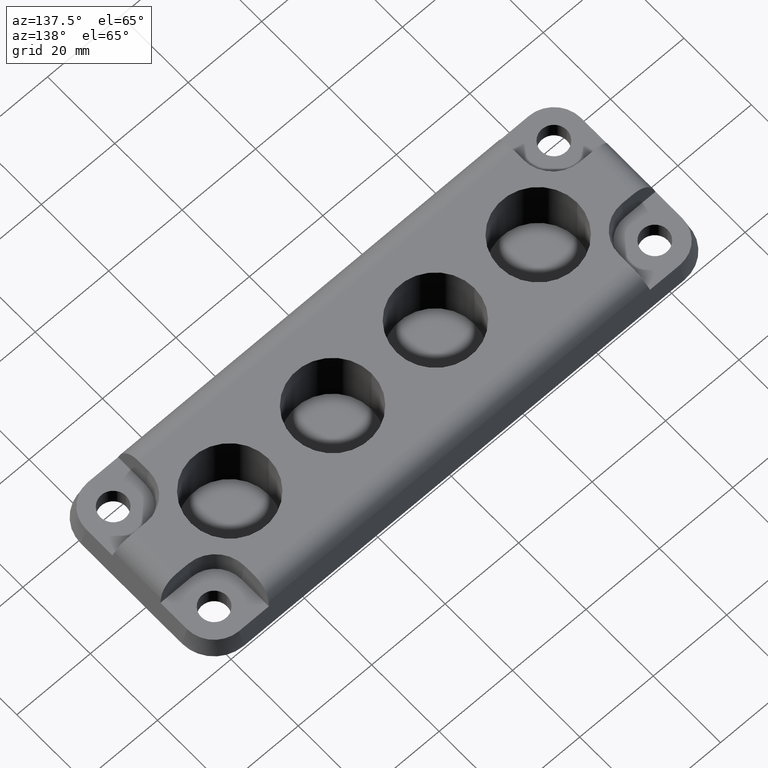
[diagram: clean part render]
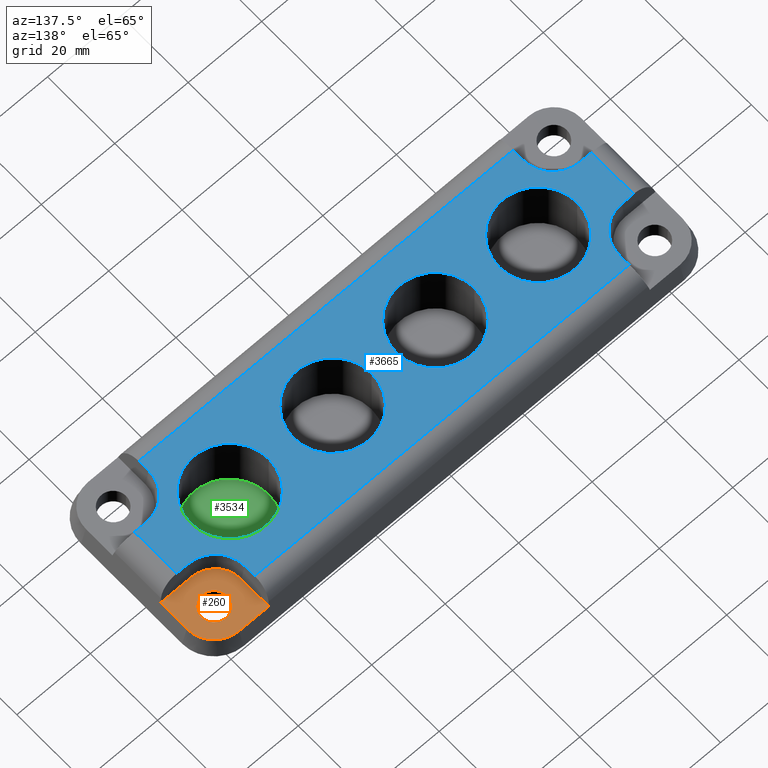
[diagram: same view with three faces highlighted in distinct colors, each labeled with its STEP entity id]
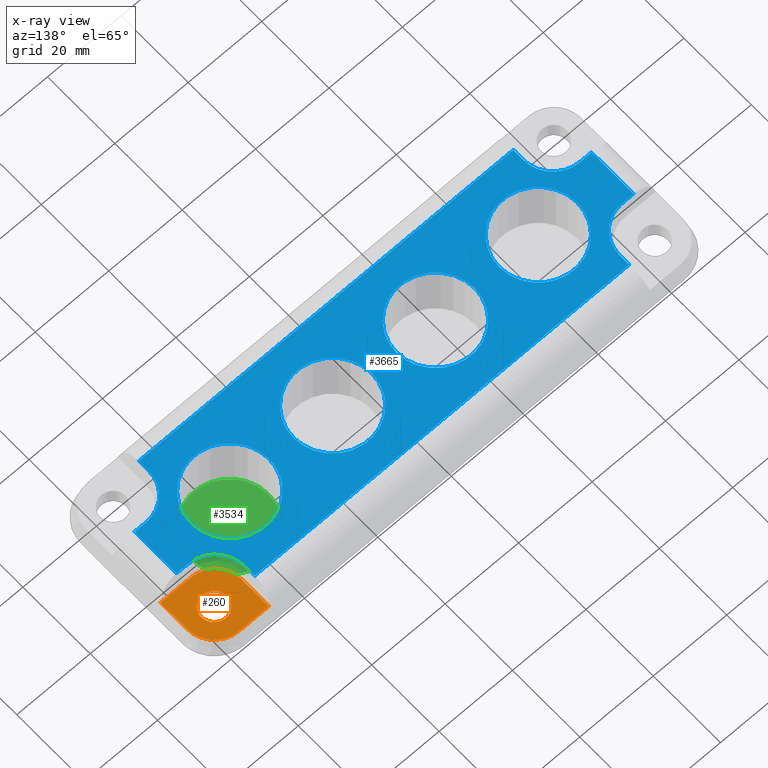
[diagram: x-ray of the same camera — body ghosted, the three highlighted faces saturated]
A machine part, auxiliary view with three faces highlighted in distinct colors.
The next image is the same camera in x-ray (body ghosted, the three faces saturated) — at least one of them is partly hidden behind the body in this view.
Their STEP definitions:

[orange] entity #260 — the highlighted planar face has unit normal (-0, 0, -1).
#56 = CARTESIAN_POINT ( 'NONE',  ( 67.41025403784439600, -14.99999999999997900, 5.000000000000000000 ) ) ;
#65 = CARTESIAN_POINT ( 'NONE',  ( 59.00000000000004300, 7.131634903542318300, 5.000000000000000000 ) ) ;
#120 = ORIENTED_EDGE ( 'NONE', *, *, #379, .F. ) ;
#200 = EDGE_CURVE ( 'NONE', #3311, #3814, #3155, .T. ) ;
#217 = VERTEX_POINT ( 'NONE', #3010 ) ;
#241 = LINE ( 'NONE', #1323, #4007 ) ;
#260 = ADVANCED_FACE ( 'NONE', ( #380, #432 ), #3676, .F. ) ;
#379 = EDGE_CURVE ( 'NONE', #1141, #1532, #2167, .T. ) ;
#380 = FACE_BOUND ( 'NONE', #2458, .T. ) ;
#432 = FACE_OUTER_BOUND ( 'NONE', #435, .T. ) ;
#435 = EDGE_LOOP ( 'NONE', ( #680, #120, #2648, #1283, #1404, #764 ) ) ;
#438 = CARTESIAN_POINT ( 'NONE',  ( 63.50000000000000000, 14.99999999999998800, 5.000000000000000000 ) ) ;
#618 = EDGE_CURVE ( 'NONE', #1532, #2119, #1313, .T. ) ;
#642 = VECTOR ( 'NONE', #2559, 1000.000000000000000 ) ;
#680 = ORIENTED_EDGE ( 'NONE', *, *, #618, .F. ) ;
#764 = ORIENTED_EDGE ( 'NONE', *, *, #3254, .F. ) ;
#817 = AXIS2_PLACEMENT_3D ( 'NONE', #2187, #2840, #2824 ) ;
#990 = LINE ( 'NONE', #3370, #1285 ) ;
#1113 = CARTESIAN_POINT ( 'NONE',  ( 59.00000000000000000, 14.24999999999999100, 5.000000000000000000 ) ) ;
#1141 = VERTEX_POINT ( 'NONE', #2594 ) ;
#1173 = VERTEX_POINT ( 'NONE', #438 ) ;
#1283 = ORIENTED_EDGE ( 'NONE', *, *, #200, .T. ) ;
#1285 = VECTOR ( 'NONE', #1784, 1000.000000000000000 ) ;
#1309 = CARTESIAN_POINT ( 'NONE',  ( 60.00000000000000700, 22.41025403784440700, 5.000000000000000000 ) ) ;
#1313 = CIRCLE ( 'NONE', #2043, 7.410254037844405900 ) ;
#1321 = EDGE_CURVE ( 'NONE', #3814, #217, #990, .T. ) ;
#1323 = CARTESIAN_POINT ( 'NONE',  ( 51.88163490354230600, 23.75000000000004600, 5.000000000000000000 ) ) ;
#1350 = DIRECTION ( 'NONE',  ( 1.460819769243627500E-015, -1.000000000000000000, 0.0000000000000000000 ) ) ;
#1395 = EDGE_CURVE ( 'NONE', #1173, #3625, #2497, .T. ) ;
#1401 = VECTOR ( 'NONE', #3446, 1000.000000000000000 ) ;
#1404 = ORIENTED_EDGE ( 'NONE', *, *, #1321, .T. ) ;
#1443 = CARTESIAN_POINT ( 'NONE',  ( 56.49999999999999300, 14.99999999999998800, 5.000000000000000000 ) ) ;
#1472 = DIRECTION ( 'NONE',  ( 0.0000000000000000000, 0.0000000000000000000, 1.000000000000000000 ) ) ;
#1517 = CIRCLE ( 'NONE', #817, 3.500000000000003100 ) ;
#1532 = VERTEX_POINT ( 'NONE', #1309 ) ;
#1784 = DIRECTION ( 'NONE',  ( 1.000000000000000000, 3.380486773698414600E-015, 0.0000000000000000000 ) ) ;
#1959 = ORIENTED_EDGE ( 'NONE', *, *, #1395, .F. ) ;
#1982 = EDGE_CURVE ( 'NONE', #3625, #1173, #1517, .T. ) ;
#2043 = AXIS2_PLACEMENT_3D ( 'NONE', #3608, #2953, #3583 ) ;
#2046 = DIRECTION ( 'NONE',  ( -1.000000000000000000, 0.0000000000000000000, 0.0000000000000000000 ) ) ;
#2119 = VERTEX_POINT ( 'NONE', #2884 ) ;
#2167 = LINE ( 'NONE', #3108, #1401 ) ;
#2187 = CARTESIAN_POINT ( 'NONE',  ( 60.00000000000000000, 14.99999999999998800, 5.000000000000000000 ) ) ;
#2265 = CARTESIAN_POINT ( 'NONE',  ( 51.88163490354232000, 14.25000000000004800, 5.000000000000000000 ) ) ;
#2340 = AXIS2_PLACEMENT_3D ( 'NONE', #3399, #3719, #3042 ) ;
#2458 = EDGE_LOOP ( 'NONE', ( #1959, #2988 ) ) ;
#2497 = CIRCLE ( 'NONE', #3443, 3.500000000000003100 ) ;
#2559 = DIRECTION ( 'NONE',  ( -0.0000000000000000000, -1.000000000000000000, -0.0000000000000000000 ) ) ;
#2594 = CARTESIAN_POINT ( 'NONE',  ( 51.88163490354231300, 22.41025403784440700, 4.999999999999999100 ) ) ;
#2648 = ORIENTED_EDGE ( 'NONE', *, *, #3725, .T. ) ;
#2674 = LINE ( 'NONE', #56, #642 ) ;
#2824 = DIRECTION ( 'NONE',  ( 1.000000000000000000, 0.0000000000000000000, 0.0000000000000000000 ) ) ;
#2840 = DIRECTION ( 'NONE',  ( 0.0000000000000000000, 0.0000000000000000000, 1.000000000000000000 ) ) ;
#2884 = CARTESIAN_POINT ( 'NONE',  ( 67.41025403784441000, 14.99999999999999300, 5.000000000000000000 ) ) ;
#2953 = DIRECTION ( 'NONE',  ( -0.0000000000000000000, -0.0000000000000000000, -1.000000000000000000 ) ) ;
#2988 = ORIENTED_EDGE ( 'NONE', *, *, #1982, .F. ) ;
#3010 = CARTESIAN_POINT ( 'NONE',  ( 67.41025403784439600, 7.131634903542348500, 5.000000000000000900 ) ) ;
#3042 = DIRECTION ( 'NONE',  ( -1.000000000000000000, 0.0000000000000000000, 0.0000000000000000000 ) ) ;
#3108 = CARTESIAN_POINT ( 'NONE',  ( -60.00000000000000700, 22.41025403784440700, 5.000000000000000000 ) ) ;
#3155 = CIRCLE ( 'NONE', #3624, 7.118365096457676300 ) ;
#3254 = EDGE_CURVE ( 'NONE', #2119, #217, #2674, .T. ) ;
#3311 = VERTEX_POINT ( 'NONE', #2265 ) ;
#3354 = CARTESIAN_POINT ( 'NONE',  ( 60.00000000000000000, 14.99999999999998800, 5.000000000000000000 ) ) ;
#3370 = CARTESIAN_POINT ( 'NONE',  ( 59.00000000000005000, 7.131634903542319200, 5.000000000000000000 ) ) ;
#3399 = CARTESIAN_POINT ( 'NONE',  ( -60.00000000000000700, 14.99999999999999300, 5.000000000000000000 ) ) ;
#3443 = AXIS2_PLACEMENT_3D ( 'NONE', #3354, #1472, #3679 ) ;
#3446 = DIRECTION ( 'NONE',  ( 1.000000000000000000, -0.0000000000000000000, -0.0000000000000000000 ) ) ;
#3583 = DIRECTION ( 'NONE',  ( -1.000000000000000000, 0.0000000000000000000, 0.0000000000000000000 ) ) ;
#3608 = CARTESIAN_POINT ( 'NONE',  ( 60.00000000000000700, 14.99999999999999300, 5.000000000000000000 ) ) ;
#3624 = AXIS2_PLACEMENT_3D ( 'NONE', #1113, #3942, #2046 ) ;
#3625 = VERTEX_POINT ( 'NONE', #1443 ) ;
#3676 = PLANE ( 'NONE',  #2340 ) ;
#3679 = DIRECTION ( 'NONE',  ( 1.000000000000000000, 0.0000000000000000000, 0.0000000000000000000 ) ) ;
#3719 = DIRECTION ( 'NONE',  ( -0.0000000000000000000, 0.0000000000000000000, -1.000000000000000000 ) ) ;
#3725 = EDGE_CURVE ( 'NONE', #1141, #3311, #241, .T. ) ;
#3814 = VERTEX_POINT ( 'NONE', #65 ) ;
#3942 = DIRECTION ( 'NONE',  ( 0.0000000000000000000, 0.0000000000000000000, 1.000000000000000000 ) ) ;
#4007 = VECTOR ( 'NONE', #1350, 1000.000000000000000 ) ;

[blue] entity #3665 — the highlighted planar face has unit normal (-0, 0, -1).
#35 = DIRECTION ( 'NONE',  ( -1.000000000000000000, 0.0000000000000000000, 0.0000000000000000000 ) ) ;
#52 = ORIENTED_EDGE ( 'NONE', *, *, #2007, .F. ) ;
#61 = CARTESIAN_POINT ( 'NONE',  ( 51.00000000000000000, 15.00000000000015500, 10.00000000000000000 ) ) ;
#74 = ORIENTED_EDGE ( 'NONE', *, *, #1440, .F. ) ;
#79 = ORIENTED_EDGE ( 'NONE', *, *, #3453, .F. ) ;
#82 = CARTESIAN_POINT ( 'NONE',  ( -24.60000000000000100, 1.298125607096194400E-015, 10.00000000000000000 ) ) ;
#96 = CIRCLE ( 'NONE', #610, 10.59999999999999800 ) ;
#103 = CARTESIAN_POINT ( 'NONE',  ( -42.00000000000000000, -1.328571821804666600E-031, 10.00000000000000000 ) ) ;
#115 = ORIENTED_EDGE ( 'NONE', *, *, #216, .T. ) ;
#130 = DIRECTION ( 'NONE',  ( 1.000000000000000000, 0.0000000000000000000, 0.0000000000000000000 ) ) ;
#172 = EDGE_CURVE ( 'NONE', #3811, #521, #2957, .T. ) ;
#193 = AXIS2_PLACEMENT_3D ( 'NONE', #2409, #1507, #315 ) ;
#215 = CIRCLE ( 'NONE', #3708, 8.000000000000000000 ) ;
#216 = EDGE_CURVE ( 'NONE', #406, #665, #2517, .T. ) ;
#221 = DIRECTION ( 'NONE',  ( 7.304098846218156400E-016, -1.000000000000000000, -0.0000000000000000000 ) ) ;
#226 = ORIENTED_EDGE ( 'NONE', *, *, #955, .F. ) ;
#231 = ORIENTED_EDGE ( 'NONE', *, *, #1707, .T. ) ;
#248 = DIRECTION ( 'NONE',  ( 0.0000000000000000000, 0.0000000000000000000, 1.000000000000000000 ) ) ;
#251 = CARTESIAN_POINT ( 'NONE',  ( -59.00000000000005000, -6.250000000000004400, 10.00000000000000000 ) ) ;
#253 = EDGE_CURVE ( 'NONE', #366, #2562, #631, .T. ) ;
#275 = ORIENTED_EDGE ( 'NONE', *, *, #1341, .T. ) ;
#277 = DIRECTION ( 'NONE',  ( 0.0000000000000000000, 0.0000000000000000000, 1.000000000000000000 ) ) ;
#295 = VERTEX_POINT ( 'NONE', #2105 ) ;
#300 = CIRCLE ( 'NONE', #2878, 10.60000000000000000 ) ;
#315 = DIRECTION ( 'NONE',  ( 1.000000000000000000, 0.0000000000000000000, 0.0000000000000000000 ) ) ;
#328 = ORIENTED_EDGE ( 'NONE', *, *, #2862, .F. ) ;
#366 = VERTEX_POINT ( 'NONE', #1855 ) ;
#394 = AXIS2_PLACEMENT_3D ( 'NONE', #3902, #3890, #1082 ) ;
#398 = VECTOR ( 'NONE', #3500, 1000.000000000000000 ) ;
#406 = VERTEX_POINT ( 'NONE', #3758 ) ;
#407 = LINE ( 'NONE', #2676, #3883 ) ;
#480 = EDGE_CURVE ( 'NONE', #3264, #2208, #1547, .T. ) ;
#514 = DIRECTION ( 'NONE',  ( -0.0000000000000000000, -1.000000000000000000, -0.0000000000000000000 ) ) ;
#521 = VERTEX_POINT ( 'NONE', #3098 ) ;
#557 = AXIS2_PLACEMENT_3D ( 'NONE', #2510, #699, #35 ) ;
#579 = VERTEX_POINT ( 'NONE', #3837 ) ;
#585 = CARTESIAN_POINT ( 'NONE',  ( -14.00000000000000000, 0.0000000000000000000, 10.00000000000000000 ) ) ;
#590 = CARTESIAN_POINT ( 'NONE',  ( -31.40000000000000600, -1.328571821804666600E-031, 10.00000000000000000 ) ) ;
#591 = DIRECTION ( 'NONE',  ( 1.000000000000000000, 0.0000000000000000000, 0.0000000000000000000 ) ) ;
#598 = EDGE_CURVE ( 'NONE', #3793, #2220, #3956, .T. ) ;
#610 = AXIS2_PLACEMENT_3D ( 'NONE', #3262, #3552, #130 ) ;
#615 = DIRECTION ( 'NONE',  ( 1.000000000000000000, 5.337610695313285900E-016, 0.0000000000000000000 ) ) ;
#627 = VERTEX_POINT ( 'NONE', #2966 ) ;
#628 = ORIENTED_EDGE ( 'NONE', *, *, #253, .F. ) ;
#631 = CIRCLE ( 'NONE', #2414, 10.60000000000000000 ) ;
#637 = VERTEX_POINT ( 'NONE', #1369 ) ;
#648 = FACE_BOUND ( 'NONE', #2016, .T. ) ;
#652 = LINE ( 'NONE', #1820, #1232 ) ;
#665 = VERTEX_POINT ( 'NONE', #3566 ) ;
#675 = ORIENTED_EDGE ( 'NONE', *, *, #1733, .F. ) ;
#676 = EDGE_CURVE ( 'NONE', #2986, #3059, #96, .T. ) ;
#699 = DIRECTION ( 'NONE',  ( 0.0000000000000000000, 0.0000000000000000000, 1.000000000000000000 ) ) ;
#706 = VECTOR ( 'NONE', #1128, 1000.000000000000000 ) ;
#709 = CARTESIAN_POINT ( 'NONE',  ( 59.00000000000005000, -6.249999999999981300, 10.00000000000000000 ) ) ;
#773 = ORIENTED_EDGE ( 'NONE', *, *, #2778, .T. ) ;
#812 = CARTESIAN_POINT ( 'NONE',  ( 59.00000000000005000, 6.249999999999992900, 10.00000000000000000 ) ) ;
#836 = LINE ( 'NONE', #3870, #3872 ) ;
#859 = DIRECTION ( 'NONE',  ( 1.000000000000000000, 0.0000000000000000000, 0.0000000000000000000 ) ) ;
#861 = PLANE ( 'NONE',  #1265 ) ;
#867 = EDGE_LOOP ( 'NONE', ( #628, #2400 ) ) ;
#895 = VECTOR ( 'NONE', #1162, 1000.000000000000000 ) ;
#928 = DIRECTION ( 'NONE',  ( 1.000000000000000000, 0.0000000000000000000, 0.0000000000000000000 ) ) ;
#944 = ORIENTED_EDGE ( 'NONE', *, *, #676, .F. ) ;
#955 = EDGE_CURVE ( 'NONE', #295, #3560, #1501, .T. ) ;
#962 = CARTESIAN_POINT ( 'NONE',  ( 52.60000000000000100, -1.328571821804666600E-031, 10.00000000000000000 ) ) ;
#977 = CARTESIAN_POINT ( 'NONE',  ( 13.99999999999999600, -1.328571821804666600E-031, 10.00000000000000000 ) ) ;
#1047 = CARTESIAN_POINT ( 'NONE',  ( 51.00000000000000000, -17.23387313579397100, 10.00000000000000000 ) ) ;
#1058 = AXIS2_PLACEMENT_3D ( 'NONE', #2097, #1760, #1160 ) ;
#1082 = DIRECTION ( 'NONE',  ( -1.000000000000000000, 0.0000000000000000000, 0.0000000000000000000 ) ) ;
#1128 = DIRECTION ( 'NONE',  ( 7.304098846218155400E-016, -1.000000000000000000, 0.0000000000000000000 ) ) ;
#1144 = DIRECTION ( 'NONE',  ( -1.000000000000000000, 0.0000000000000000000, 0.0000000000000000000 ) ) ;
#1160 = DIRECTION ( 'NONE',  ( 1.000000000000000000, 0.0000000000000000000, 0.0000000000000000000 ) ) ;
#1162 = DIRECTION ( 'NONE',  ( -1.000000000000000000, -8.896017825522144800E-017, 0.0000000000000000000 ) ) ;
#1187 = CARTESIAN_POINT ( 'NONE',  ( -60.00000000000000700, 17.23387313579399200, 10.00000000000000000 ) ) ;
#1228 = LINE ( 'NONE', #61, #398 ) ;
#1232 = VECTOR ( 'NONE', #3093, 1000.000000000000000 ) ;
#1265 = AXIS2_PLACEMENT_3D ( 'NONE', #1475, #3993, #1144 ) ;
#1314 = EDGE_CURVE ( 'NONE', #2363, #3402, #3340, .T. ) ;
#1330 = VERTEX_POINT ( 'NONE', #3638 ) ;
#1331 = LINE ( 'NONE', #1187, #3137 ) ;
#1341 = EDGE_CURVE ( 'NONE', #3793, #2396, #2242, .T. ) ;
#1344 = EDGE_CURVE ( 'NONE', #579, #1330, #1331, .T. ) ;
#1366 = ORIENTED_EDGE ( 'NONE', *, *, #1344, .T. ) ;
#1369 = CARTESIAN_POINT ( 'NONE',  ( -51.00000000000000000, 14.25000000000004300, 10.00000000000000000 ) ) ;
#1417 = ORIENTED_EDGE ( 'NONE', *, *, #1925, .T. ) ;
#1427 = CARTESIAN_POINT ( 'NONE',  ( -62.23387313579398500, 14.99999999999999300, 10.00000000000000000 ) ) ;
#1428 = ORIENTED_EDGE ( 'NONE', *, *, #2264, .F. ) ;
#1440 = EDGE_CURVE ( 'NONE', #3264, #2363, #1714, .T. ) ;
#1475 = CARTESIAN_POINT ( 'NONE',  ( -60.00000000000000700, 14.99999999999999300, 10.00000000000000000 ) ) ;
#1478 = EDGE_LOOP ( 'NONE', ( #2140, #1417, #2258, #52, #773, #1366, #328, #3238, #231, #115, #675, #3139, #275, #2999, #3057, #74 ) ) ;
#1484 = DIRECTION ( 'NONE',  ( 0.0000000000000000000, 0.0000000000000000000, 1.000000000000000000 ) ) ;
#1493 = EDGE_CURVE ( 'NONE', #3059, #2986, #3494, .T. ) ;
#1501 = CIRCLE ( 'NONE', #2366, 10.60000000000000000 ) ;
#1507 = DIRECTION ( 'NONE',  ( 0.0000000000000000000, 0.0000000000000000000, 1.000000000000000000 ) ) ;
#1534 = CARTESIAN_POINT ( 'NONE',  ( 51.00000000000000000, 14.25000000000005000, 10.00000000000000000 ) ) ;
#1547 = LINE ( 'NONE', #2816, #1975 ) ;
#1631 = DIRECTION ( 'NONE',  ( 0.0000000000000000000, 0.0000000000000000000, 1.000000000000000000 ) ) ;
#1662 = CIRCLE ( 'NONE', #557, 8.000000000000000000 ) ;
#1690 = VECTOR ( 'NONE', #2693, 1000.000000000000000 ) ;
#1702 = FACE_BOUND ( 'NONE', #2357, .T. ) ;
#1707 = EDGE_CURVE ( 'NONE', #2796, #406, #2045, .T. ) ;
#1714 = CIRCLE ( 'NONE', #3224, 8.000000000000007100 ) ;
#1727 = EDGE_CURVE ( 'NONE', #2396, #3402, #407, .T. ) ;
#1733 = EDGE_CURVE ( 'NONE', #2220, #665, #3640, .T. ) ;
#1753 = DIRECTION ( 'NONE',  ( 1.000000000000000000, 0.0000000000000000000, 0.0000000000000000000 ) ) ;
#1760 = DIRECTION ( 'NONE',  ( 0.0000000000000000000, 0.0000000000000000000, 1.000000000000000000 ) ) ;
#1783 = DIRECTION ( 'NONE',  ( 1.000000000000000000, 0.0000000000000000000, 0.0000000000000000000 ) ) ;
#1814 = VECTOR ( 'NONE', #221, 1000.000000000000000 ) ;
#1820 = CARTESIAN_POINT ( 'NONE',  ( 62.23387313579397800, 14.99999999999999300, 10.00000000000000000 ) ) ;
#1826 = VERTEX_POINT ( 'NONE', #1534 ) ;
#1855 = CARTESIAN_POINT ( 'NONE',  ( -3.400000000000000400, 0.0000000000000000000, 10.00000000000000000 ) ) ;
#1857 = CIRCLE ( 'NONE', #193, 10.59999999999999800 ) ;
#1925 = EDGE_CURVE ( 'NONE', #2208, #521, #652, .T. ) ;
#1975 = VECTOR ( 'NONE', #615, 1000.000000000000000 ) ;
#2007 = EDGE_CURVE ( 'NONE', #1826, #3811, #1662, .T. ) ;
#2016 = EDGE_LOOP ( 'NONE', ( #226, #79 ) ) ;
#2045 = LINE ( 'NONE', #3964, #895 ) ;
#2048 = VERTEX_POINT ( 'NONE', #962 ) ;
#2058 = CARTESIAN_POINT ( 'NONE',  ( 13.99999999999999600, -1.328571821804666600E-031, 10.00000000000000000 ) ) ;
#2076 = DIRECTION ( 'NONE',  ( -1.000000000000000000, -0.0000000000000000000, -0.0000000000000000000 ) ) ;
#2083 = FACE_BOUND ( 'NONE', #2378, .T. ) ;
#2097 = CARTESIAN_POINT ( 'NONE',  ( 42.00000000000000000, -1.328571821804666600E-031, 10.00000000000000000 ) ) ;
#2105 = CARTESIAN_POINT ( 'NONE',  ( 24.59999999999999800, -1.328571821804666600E-031, 10.00000000000000000 ) ) ;
#2117 = CARTESIAN_POINT ( 'NONE',  ( -51.00000000000000000, -17.23387313579397100, 10.00000000000000000 ) ) ;
#2122 = CARTESIAN_POINT ( 'NONE',  ( 59.00000000000000000, -14.24999999999998200, 10.00000000000000000 ) ) ;
#2133 = CARTESIAN_POINT ( 'NONE',  ( -52.60000000000000100, 1.298125607096194400E-015, 10.00000000000000000 ) ) ;
#2140 = ORIENTED_EDGE ( 'NONE', *, *, #480, .T. ) ;
#2163 = EDGE_CURVE ( 'NONE', #2796, #637, #215, .T. ) ;
#2208 = VERTEX_POINT ( 'NONE', #2632 ) ;
#2220 = VERTEX_POINT ( 'NONE', #3388 ) ;
#2242 = LINE ( 'NONE', #2424, #706 ) ;
#2258 = ORIENTED_EDGE ( 'NONE', *, *, #172, .F. ) ;
#2264 = EDGE_CURVE ( 'NONE', #2048, #627, #1857, .T. ) ;
#2290 = ORIENTED_EDGE ( 'NONE', *, *, #1493, .F. ) ;
#2357 = EDGE_LOOP ( 'NONE', ( #944, #2290 ) ) ;
#2363 = VERTEX_POINT ( 'NONE', #2460 ) ;
#2366 = AXIS2_PLACEMENT_3D ( 'NONE', #977, #3438, #928 ) ;
#2378 = EDGE_LOOP ( 'NONE', ( #1428, #2451 ) ) ;
#2396 = VERTEX_POINT ( 'NONE', #2117 ) ;
#2400 = ORIENTED_EDGE ( 'NONE', *, *, #2943, .F. ) ;
#2409 = CARTESIAN_POINT ( 'NONE',  ( 42.00000000000000000, -1.328571821804666600E-031, 10.00000000000000000 ) ) ;
#2414 = AXIS2_PLACEMENT_3D ( 'NONE', #585, #2722, #2732 ) ;
#2424 = CARTESIAN_POINT ( 'NONE',  ( -51.00000000000001400, 15.00000000000000000, 10.00000000000000000 ) ) ;
#2451 = ORIENTED_EDGE ( 'NONE', *, *, #3636, .F. ) ;
#2460 = CARTESIAN_POINT ( 'NONE',  ( 51.00000000000000700, -14.25000000000003200, 10.00000000000000000 ) ) ;
#2510 = CARTESIAN_POINT ( 'NONE',  ( 59.00000000000000000, 14.24999999999999100, 10.00000000000000000 ) ) ;
#2517 = LINE ( 'NONE', #1427, #3907 ) ;
#2548 = CARTESIAN_POINT ( 'NONE',  ( -59.00000000000005000, 6.249999999999992900, 10.00000000000000000 ) ) ;
#2562 = VERTEX_POINT ( 'NONE', #82 ) ;
#2592 = VECTOR ( 'NONE', #3656, 1000.000000000000000 ) ;
#2632 = CARTESIAN_POINT ( 'NONE',  ( 62.23387313579397800, -6.249999999999978700, 10.00000000000000000 ) ) ;
#2676 = CARTESIAN_POINT ( 'NONE',  ( -60.00000000000000700, -17.23387313579397100, 10.00000000000000000 ) ) ;
#2693 = DIRECTION ( 'NONE',  ( 1.000000000000000000, 3.380486773698414600E-015, 0.0000000000000000000 ) ) ;
#2722 = DIRECTION ( 'NONE',  ( 0.0000000000000000000, 0.0000000000000000000, 1.000000000000000000 ) ) ;
#2732 = DIRECTION ( 'NONE',  ( 1.000000000000000000, 0.0000000000000000000, 0.0000000000000000000 ) ) ;
#2778 = EDGE_CURVE ( 'NONE', #1826, #579, #1228, .T. ) ;
#2796 = VERTEX_POINT ( 'NONE', #2548 ) ;
#2816 = CARTESIAN_POINT ( 'NONE',  ( -59.99999999999999300, -6.250000000000043500, 10.00000000000000000 ) ) ;
#2862 = EDGE_CURVE ( 'NONE', #637, #1330, #836, .T. ) ;
#2878 = AXIS2_PLACEMENT_3D ( 'NONE', #2058, #3633, #1753 ) ;
#2900 = DIRECTION ( 'NONE',  ( -0.0000000000000000000, 1.000000000000000000, -0.0000000000000000000 ) ) ;
#2943 = EDGE_CURVE ( 'NONE', #2562, #366, #3586, .T. ) ;
#2957 = LINE ( 'NONE', #812, #1690 ) ;
#2966 = CARTESIAN_POINT ( 'NONE',  ( 31.40000000000000600, 1.298125607096194400E-015, 10.00000000000000000 ) ) ;
#2980 = CARTESIAN_POINT ( 'NONE',  ( 3.399999999999996800, 1.298125607096194200E-015, 10.00000000000000000 ) ) ;
#2986 = VERTEX_POINT ( 'NONE', #590 ) ;
#2987 = CARTESIAN_POINT ( 'NONE',  ( 51.00000000000000700, -23.75000000000001100, 10.00000000000000000 ) ) ;
#2989 = DIRECTION ( 'NONE',  ( 1.000000000000000000, -0.0000000000000000000, -0.0000000000000000000 ) ) ;
#2999 = ORIENTED_EDGE ( 'NONE', *, *, #1727, .T. ) ;
#3057 = ORIENTED_EDGE ( 'NONE', *, *, #1314, .F. ) ;
#3059 = VERTEX_POINT ( 'NONE', #2133 ) ;
#3093 = DIRECTION ( 'NONE',  ( -0.0000000000000000000, 1.000000000000000000, -0.0000000000000000000 ) ) ;
#3098 = CARTESIAN_POINT ( 'NONE',  ( 62.23387313579397800, 6.250000000000003600, 10.00000000000000000 ) ) ;
#3137 = VECTOR ( 'NONE', #2076, 1000.000000000000000 ) ;
#3139 = ORIENTED_EDGE ( 'NONE', *, *, #598, .F. ) ;
#3191 = CARTESIAN_POINT ( 'NONE',  ( 59.00000000000004300, 6.249999999999992000, 10.00000000000000000 ) ) ;
#3224 = AXIS2_PLACEMENT_3D ( 'NONE', #2122, #277, #591 ) ;
#3227 = CARTESIAN_POINT ( 'NONE',  ( -51.00000000000000000, -14.25000000000005900, 10.00000000000000000 ) ) ;
#3238 = ORIENTED_EDGE ( 'NONE', *, *, #2163, .F. ) ;
#3262 = CARTESIAN_POINT ( 'NONE',  ( -42.00000000000000000, -1.328571821804666600E-031, 10.00000000000000000 ) ) ;
#3264 = VERTEX_POINT ( 'NONE', #709 ) ;
#3312 = FACE_OUTER_BOUND ( 'NONE', #1478, .T. ) ;
#3340 = LINE ( 'NONE', #2987, #1814 ) ;
#3388 = CARTESIAN_POINT ( 'NONE',  ( -59.00000000000004300, -6.250000000000004400, 10.00000000000000000 ) ) ;
#3402 = VERTEX_POINT ( 'NONE', #1047 ) ;
#3420 = CIRCLE ( 'NONE', #1058, 10.59999999999999800 ) ;
#3438 = DIRECTION ( 'NONE',  ( 0.0000000000000000000, 0.0000000000000000000, 1.000000000000000000 ) ) ;
#3453 = EDGE_CURVE ( 'NONE', #3560, #295, #300, .T. ) ;
#3494 = CIRCLE ( 'NONE', #3651, 10.59999999999999800 ) ;
#3500 = DIRECTION ( 'NONE',  ( -1.460819769243627500E-015, 1.000000000000000000, 0.0000000000000000000 ) ) ;
#3552 = DIRECTION ( 'NONE',  ( 0.0000000000000000000, 0.0000000000000000000, 1.000000000000000000 ) ) ;
#3560 = VERTEX_POINT ( 'NONE', #2980 ) ;
#3566 = CARTESIAN_POINT ( 'NONE',  ( -62.23387313579398500, -6.250000000000006200, 10.00000000000000000 ) ) ;
#3586 = CIRCLE ( 'NONE', #3606, 10.60000000000000000 ) ;
#3606 = AXIS2_PLACEMENT_3D ( 'NONE', #3678, #1484, #1783 ) ;
#3633 = DIRECTION ( 'NONE',  ( 0.0000000000000000000, 0.0000000000000000000, 1.000000000000000000 ) ) ;
#3636 = EDGE_CURVE ( 'NONE', #627, #2048, #3420, .T. ) ;
#3638 = CARTESIAN_POINT ( 'NONE',  ( -51.00000000000000000, 17.23387313579399200, 10.00000000000000000 ) ) ;
#3640 = LINE ( 'NONE', #251, #2592 ) ;
#3651 = AXIS2_PLACEMENT_3D ( 'NONE', #103, #1631, #3850 ) ;
#3656 = DIRECTION ( 'NONE',  ( -1.000000000000000000, -4.448008912761071400E-016, 0.0000000000000000000 ) ) ;
#3665 = ADVANCED_FACE ( 'NONE', ( #648, #1702, #2083, #3724, #3312 ), #861, .F. ) ;
#3678 = CARTESIAN_POINT ( 'NONE',  ( -14.00000000000000000, 0.0000000000000000000, 10.00000000000000000 ) ) ;
#3708 = AXIS2_PLACEMENT_3D ( 'NONE', #3897, #248, #859 ) ;
#3724 = FACE_BOUND ( 'NONE', #867, .T. ) ;
#3758 = CARTESIAN_POINT ( 'NONE',  ( -62.23387313579398500, 6.249999999999992000, 10.00000000000000000 ) ) ;
#3793 = VERTEX_POINT ( 'NONE', #3227 ) ;
#3811 = VERTEX_POINT ( 'NONE', #3191 ) ;
#3837 = CARTESIAN_POINT ( 'NONE',  ( 51.00000000000000000, 17.23387313579399200, 10.00000000000000000 ) ) ;
#3850 = DIRECTION ( 'NONE',  ( 1.000000000000000000, 0.0000000000000000000, 0.0000000000000000000 ) ) ;
#3870 = CARTESIAN_POINT ( 'NONE',  ( -51.00000000000000000, 23.75000000000002100, 10.00000000000000000 ) ) ;
#3872 = VECTOR ( 'NONE', #2900, 1000.000000000000000 ) ;
#3883 = VECTOR ( 'NONE', #2989, 1000.000000000000000 ) ;
#3890 = DIRECTION ( 'NONE',  ( 0.0000000000000000000, 0.0000000000000000000, 1.000000000000000000 ) ) ;
#3897 = CARTESIAN_POINT ( 'NONE',  ( -59.00000000000000000, 14.24999999999999100, 10.00000000000000000 ) ) ;
#3902 = CARTESIAN_POINT ( 'NONE',  ( -59.00000000000000000, -14.25000000000000200, 10.00000000000000000 ) ) ;
#3907 = VECTOR ( 'NONE', #514, 1000.000000000000000 ) ;
#3956 = CIRCLE ( 'NONE', #394, 7.999999999999992900 ) ;
#3964 = CARTESIAN_POINT ( 'NONE',  ( -60.00000000000000700, 6.249999999999992000, 10.00000000000000000 ) ) ;
#3993 = DIRECTION ( 'NONE',  ( -0.0000000000000000000, 0.0000000000000000000, -1.000000000000000000 ) ) ;

[green] entity #3534 — the highlighted planar face has unit normal (0, 0, 1).
#152 = CIRCLE ( 'NONE', #320, 10.59999999999999800 ) ;
#320 = AXIS2_PLACEMENT_3D ( 'NONE', #3644, #1750, #1413 ) ;
#512 = DIRECTION ( 'NONE',  ( 0.0000000000000000000, 0.0000000000000000000, 1.000000000000000000 ) ) ;
#732 = CARTESIAN_POINT ( 'NONE',  ( 42.00000000000000000, -1.328571821804666600E-031, -7.000000000000000900 ) ) ;
#751 = EDGE_CURVE ( 'NONE', #3371, #1578, #152, .T. ) ;
#1280 = AXIS2_PLACEMENT_3D ( 'NONE', #732, #2597, #2876 ) ;
#1413 = DIRECTION ( 'NONE',  ( 1.000000000000000000, 0.0000000000000000000, 0.0000000000000000000 ) ) ;
#1502 = EDGE_CURVE ( 'NONE', #1578, #3371, #3931, .T. ) ;
#1578 = VERTEX_POINT ( 'NONE', #3917 ) ;
#1750 = DIRECTION ( 'NONE',  ( 0.0000000000000000000, 0.0000000000000000000, 1.000000000000000000 ) ) ;
#2009 = CARTESIAN_POINT ( 'NONE',  ( 52.60000000000000100, -1.328571821804666600E-031, -7.000000000000000900 ) ) ;
#2088 = PLANE ( 'NONE',  #3001 ) ;
#2597 = DIRECTION ( 'NONE',  ( 0.0000000000000000000, 0.0000000000000000000, 1.000000000000000000 ) ) ;
#2680 = DIRECTION ( 'NONE',  ( 1.000000000000000000, 0.0000000000000000000, -0.0000000000000000000 ) ) ;
#2876 = DIRECTION ( 'NONE',  ( 1.000000000000000000, 0.0000000000000000000, 0.0000000000000000000 ) ) ;
#3001 = AXIS2_PLACEMENT_3D ( 'NONE', #3292, #512, #2680 ) ;
#3013 = EDGE_LOOP ( 'NONE', ( #3049, #3706 ) ) ;
#3049 = ORIENTED_EDGE ( 'NONE', *, *, #751, .T. ) ;
#3292 = CARTESIAN_POINT ( 'NONE',  ( 42.00000000000000000, -1.328571821804666600E-031, -7.000000000000000900 ) ) ;
#3371 = VERTEX_POINT ( 'NONE', #2009 ) ;
#3433 = FACE_OUTER_BOUND ( 'NONE', #3013, .T. ) ;
#3534 = ADVANCED_FACE ( 'NONE', ( #3433 ), #2088, .T. ) ;
#3644 = CARTESIAN_POINT ( 'NONE',  ( 42.00000000000000000, -1.328571821804666600E-031, -7.000000000000000900 ) ) ;
#3706 = ORIENTED_EDGE ( 'NONE', *, *, #1502, .T. ) ;
#3917 = CARTESIAN_POINT ( 'NONE',  ( 31.40000000000000600, 1.298125607096194400E-015, -7.000000000000000900 ) ) ;
#3931 = CIRCLE ( 'NONE', #1280, 10.59999999999999800 ) ;